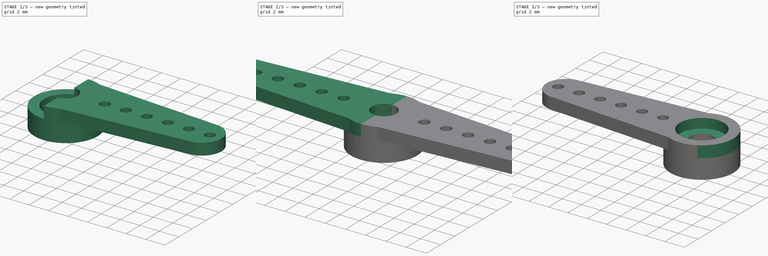
[diagram: build sequence overview — one tinted view per stage of 3, left to right]
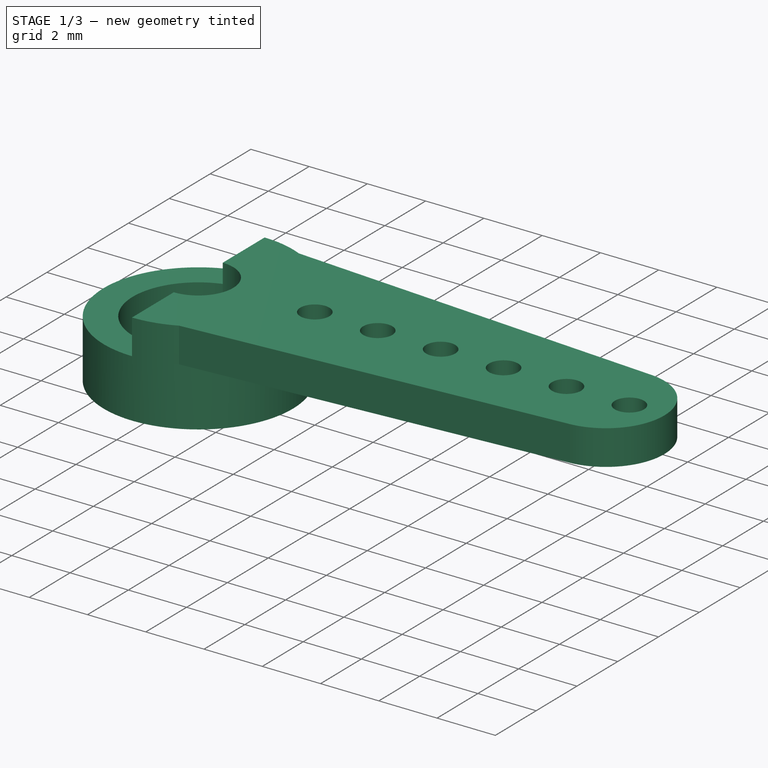
[diagram: stage 1 of 3 — iso view after this stage's code; geometry added in this stage tinted green]
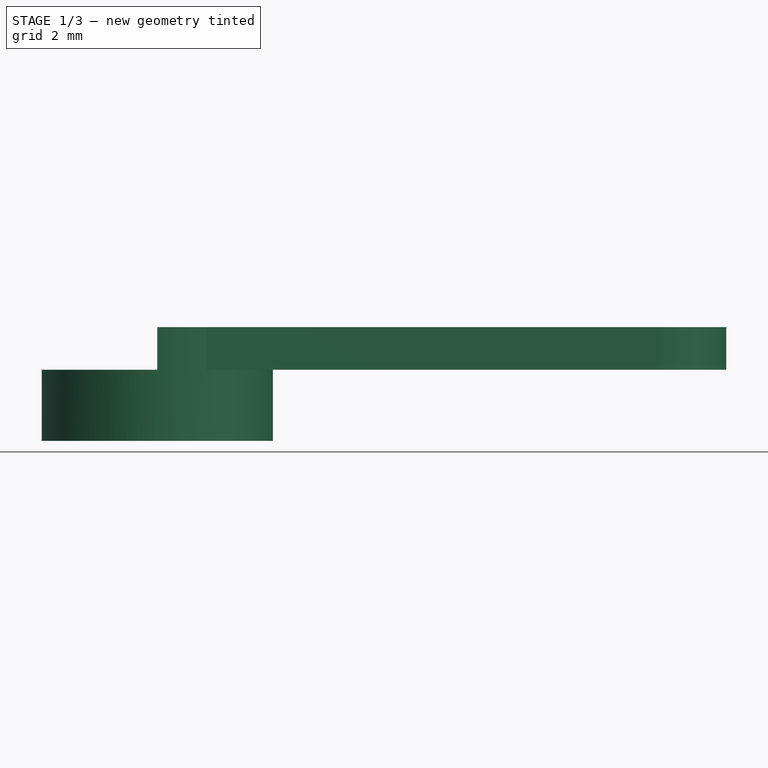
[diagram: stage 1 of 3 — front view after this stage's code; geometry added in this stage tinted green]
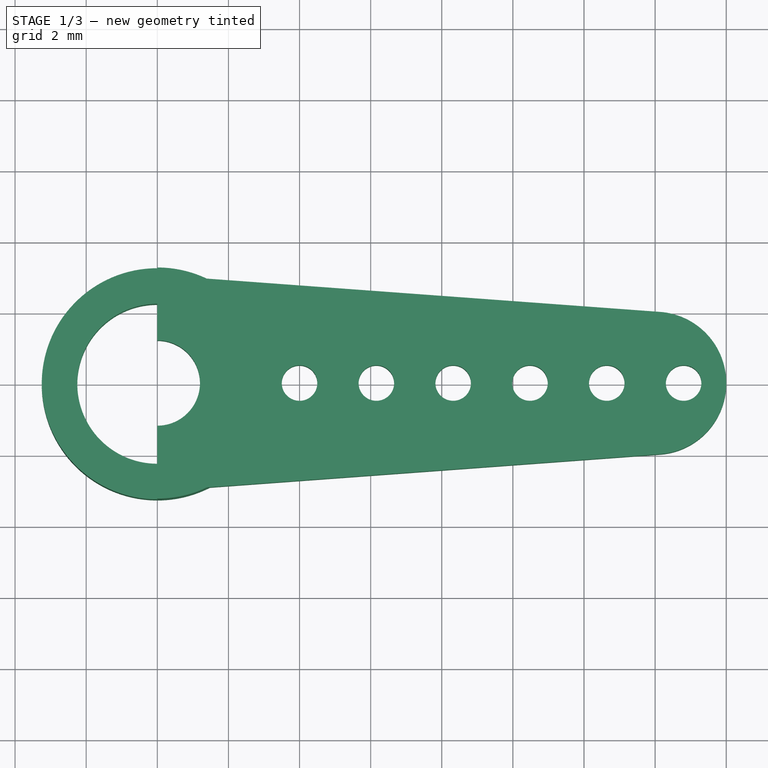
[diagram: stage 1 of 3 — top view after this stage's code; geometry added in this stage tinted green]
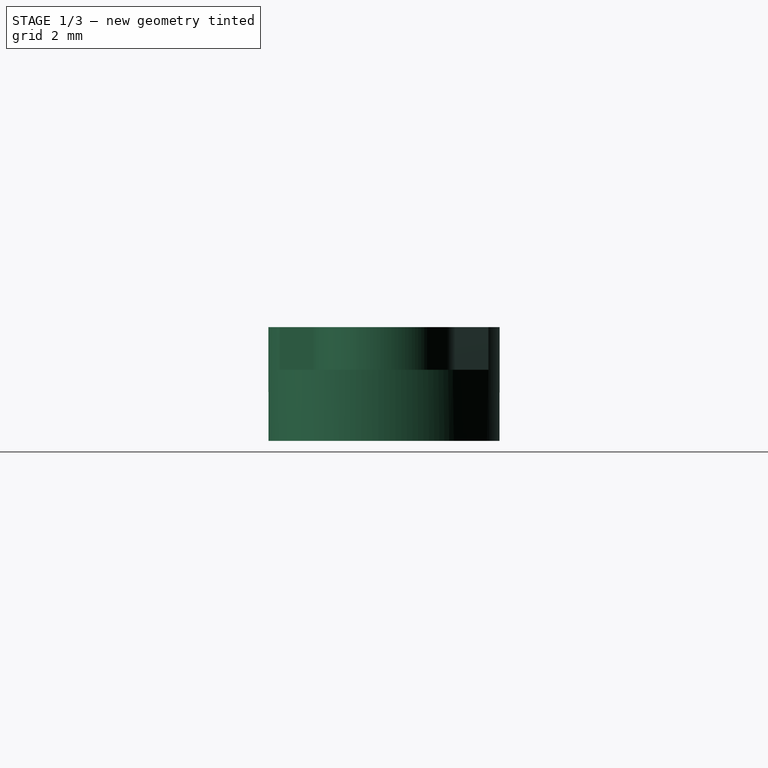
[diagram: stage 1 of 3 — right view after this stage's code; geometry added in this stage tinted green]
FCSTD DOCUMENT  (FreeCAD 0.19R24276 (Git))
Label: tapa_2_SG90
License: All rights reserved
LicenseURL: http://en.wikipedia.org/wiki/All_rights_reserved
objects: Sketcher::SketchObject×4, PartDesign::Pad×2, PartDesign::Pocket×2, PartDesign::Mirrored×1, PartDesign::Body×1
note: 14 computed .brp shape members not serialized (recipe doc carries the construction recipe); baked Part::Feature solids carry a one-line shape summary decoded from their .brp

FEATURE [Sketcher::SketchObject] Sketch
  FullyConstrained = true
  MapMode = 5
  Support = -> [XY_Plane]
  sketch-geometry (2):
    g0: Circle CenterX=0 CenterY=0 CenterZ=0 NormalX=0 NormalY=0 NormalZ=1 AngleXU=0 Radius=2.25
    g1: Circle CenterX=0 CenterY=0 CenterZ=0 NormalX=0 NormalY=0 NormalZ=1 AngleXU=0 Radius=3.25
  constraints (4):
    c: Coincident(g0,g-1)
    c: Coincident(g1,g0)
    c: Diameter(g0) = 4.5
    c: Diameter(g1) = 6.5
FEATURE [PartDesign::Pad] Pad
  Direction = (1,1,1)
  Length = 2
  Length2 = 100
  Profile = -> Sketch
  Type = 0
FEATURE [Sketcher::SketchObject] Sketch001
  ExternalGeometry = -> [Pad]
  FullyConstrained = false
  MapMode = 5
  Placement = pos=(0,0,2) rot=(0,0,1;0rad)
  Support = -> [Pad]
  sketch-geometry (22):
    g0: LineSegment StartX=1.39256 StartY=2.93654 StartZ=0 EndX=14.1415 EndY=2 EndZ=0
    g1: ArcOfCircle CenterX=13.9946 CenterY=0 CenterZ=0 NormalX=0 NormalY=0 NormalZ=1 AngleXU=0 Radius=2.00539 StartAngle=4.78572 EndAngle=7.78065
    g2: LineSegment StartX=14.1415 StartY=-2 StartZ=0 EndX=1.39256 EndY=-2.93654 EndZ=0
    g3: GeomPoint X=16 Y=0 Z=0
    g4: Circle CenterX=4 CenterY=0 CenterZ=0 NormalX=0 NormalY=0 NormalZ=1 AngleXU=0 Radius=0.5
    g5: Circle CenterX=6.16 CenterY=0 CenterZ=0 NormalX=0 NormalY=0 NormalZ=1 AngleXU=0 Radius=0.5
    g6: Circle CenterX=8.32 CenterY=0 CenterZ=0 NormalX=0 NormalY=0 NormalZ=1 AngleXU=0 Radius=0.5
    g7: Circle CenterX=10.48 CenterY=0 CenterZ=0 NormalX=0 NormalY=0 NormalZ=1 AngleXU=0 Radius=0.5
    g8: Circle CenterX=12.64 CenterY=0 CenterZ=0 NormalX=0 NormalY=0 NormalZ=1 AngleXU=0 Radius=0.5
    g9: Circle CenterX=14.8 CenterY=0 CenterZ=0 NormalX=0 NormalY=0 NormalZ=1 AngleXU=0 Radius=0.5
    g10: LineSegment StartX=4 StartY=0 StartZ=0 EndX=6.16 EndY=0 EndZ=0
    g11: LineSegment StartX=6.16 StartY=0 StartZ=0 EndX=8.32 EndY=0 EndZ=0
    g12: LineSegment StartX=8.32 StartY=0 StartZ=0 EndX=10.48 EndY=0 EndZ=0
    g13: LineSegment StartX=10.48 StartY=0 StartZ=0 EndX=12.64 EndY=0 EndZ=0
    g14: LineSegment StartX=12.64 StartY=0 StartZ=0 EndX=14.8 EndY=0 EndZ=0
    g15: GeomPoint X=0 Y=3.25 Z=0
    g16: GeomPoint X=-6e-16 Y=-3.25 Z=0
    g17: ArcOfCircle CenterX=0 CenterY=0 CenterZ=0 NormalX=0 NormalY=0 NormalZ=1 AngleXU=0 Radius=3.25 StartAngle=1.12799 EndAngle=1.5708
    g18: ArcOfCircle CenterX=0 CenterY=0 CenterZ=0 NormalX=0 NormalY=0 NormalZ=1 AngleXU=0 Radius=3.25 StartAngle=4.71239 EndAngle=5.1552
    g19: LineSegment StartX=0 StartY=3.25 StartZ=0 EndX=4e-16 EndY=1.2 EndZ=0
    g20: ArcOfCircle CenterX=0 CenterY=0 CenterZ=0 NormalX=0 NormalY=0 NormalZ=1 AngleXU=0 Radius=1.2 StartAngle=4.71239 EndAngle=7.85398
    g21: LineSegment StartX=-2e-16 StartY=-1.2 StartZ=0 EndX=-6e-16 EndY=-3.25 EndZ=0
  constraints (47):
    c: Tangent(g0,g1) = 1.5708
    c: PointOnObject(g1,g-1)
    c: Tangent(g1,g2) = 1.5708
    c: Symmetric(g0,g2,g-1)
    c: PointOnObject(g3,g1)
    c: PointOnObject(g3,g-1)
    c: DistanceX(g-1,g3) = 16
    c: DistanceY(g1,g0) = 4
    c: PointOnObject(g4,g-1)
    c: PointOnObject(g5,g-1)
    c: PointOnObject(g6,g-1)
    c: PointOnObject(g7,g-1)
    c: PointOnObject(g8,g-1)
    c: PointOnObject(g9,g-1)
    c: Diameter(g4) = 1
    c: Equal(g4, g5-g9) x5
    c: Coincident(g10,g4)
    c: Coincident(g10,g5)
    c: Coincident(g10,g11)
    c: Coincident(g11,g6)
    c: Coincident(g11,g12)
    c: Coincident(g12,g7)
    c: Coincident(g12,g13)
    c: Coincident(g13,g8)
    c: Coincident(g13,g14)
    c: Coincident(g14,g9)
    c: Equal(g14,g13)
    c: Equal(g13,g12)
    c: Equal(g12,g11)
    c: Equal(g11,g10)
    c: DistanceX(g9,g3) = 1.2
    c: PointOnObject(g16,g-2)
    c: PointOnObject(g15,g-2)
    c: PointOnObject(g0,g-3)
    c: Coincident(g17,g-1)
    c: Coincident(g17,g0)
    c: Coincident(g17,g15)
    c: Coincident(g18,g17)
    c: Coincident(g18,g16)
    c: Coincident(g18,g2)
    c: Coincident(g19,g17)
    c: Coincident(g21,g18)
    c: Coincident(g20,g17)
    c: Diameter(g20) = 2.4
    c: Coincident(g19,g20)
    c: Coincident(g21,g20)
    c: Tangent(g19,g21)
FEATURE [PartDesign::Pad] Pad001
  BaseFeature = -> Pad
  Direction = (1,1,1)
  Length = 1.2
  Length2 = 100
  Profile = -> Sketch001
  Type = 0
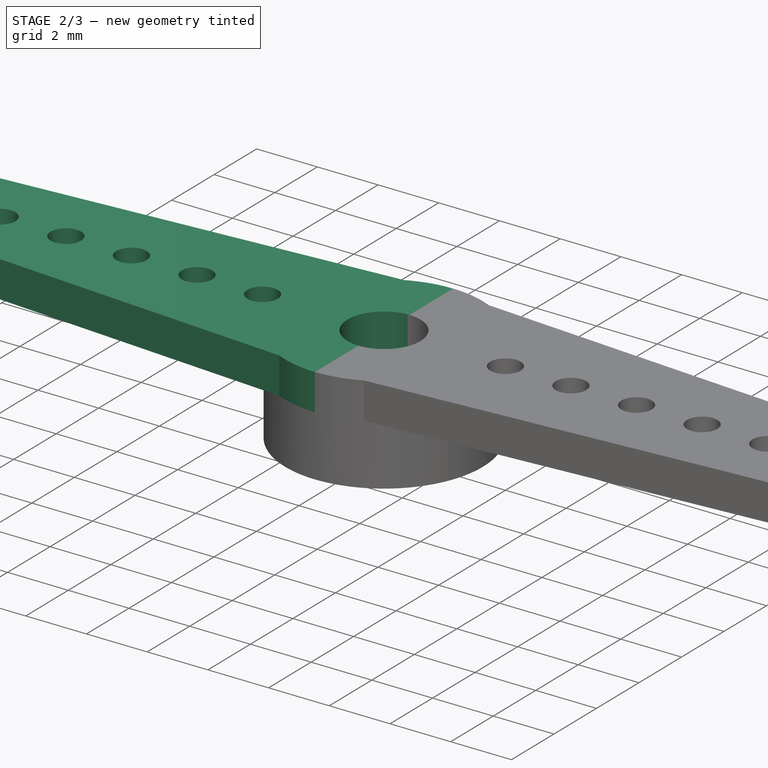
[diagram: stage 2 of 3 — iso view after this stage's code; geometry added in this stage tinted green]
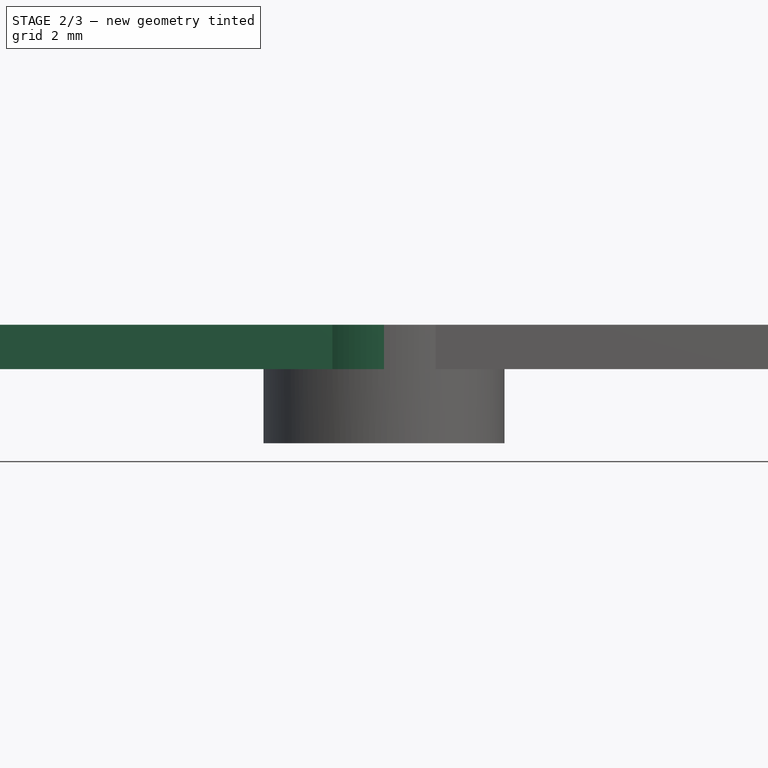
[diagram: stage 2 of 3 — front view after this stage's code; geometry added in this stage tinted green]
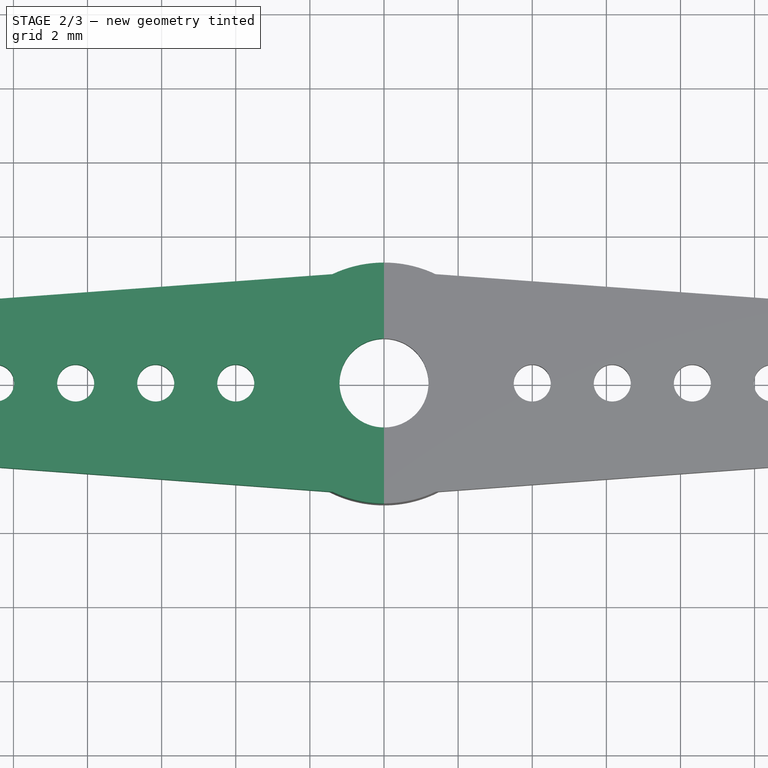
[diagram: stage 2 of 3 — top view after this stage's code; geometry added in this stage tinted green]
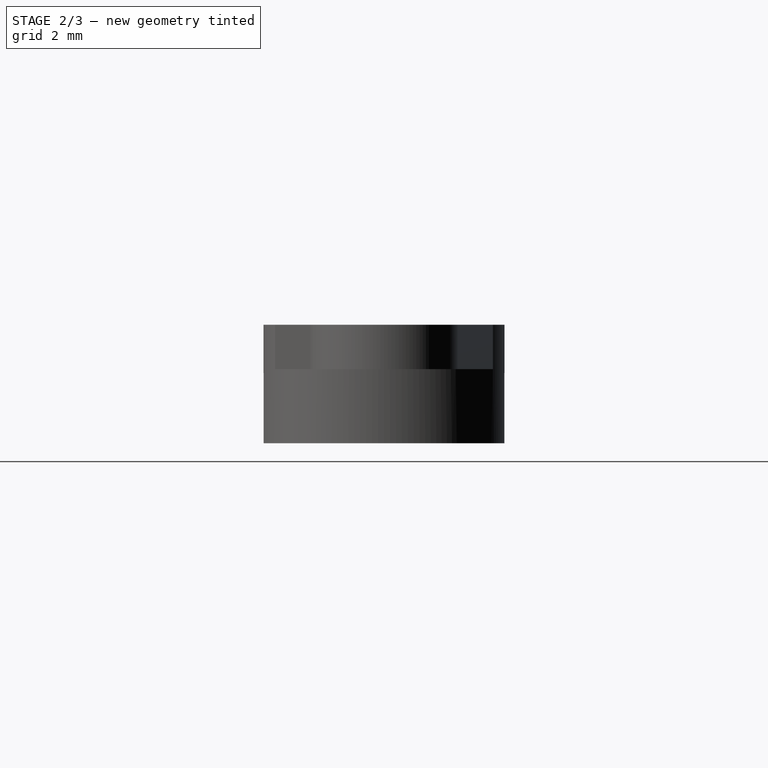
[diagram: stage 2 of 3 — right view after this stage's code; geometry added in this stage tinted green]
FEATURE [PartDesign::Mirrored] Mirrored
  BaseFeature = -> Pad001
  MirrorPlane = -> Sketch001 [V_Axis]
  Originals = -> [Pad001]
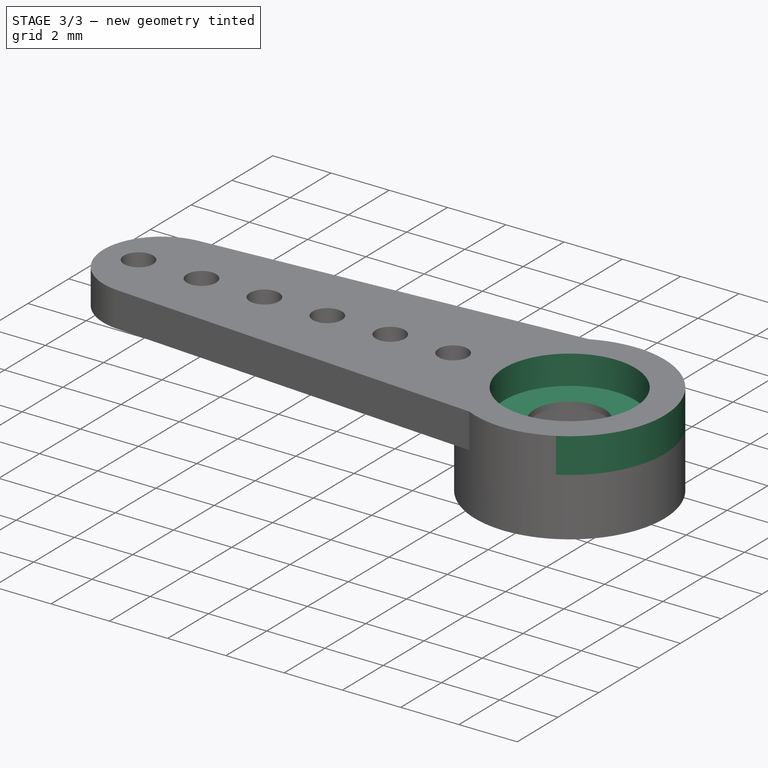
[diagram: stage 3 of 3 — iso view after this stage's code; geometry added in this stage tinted green]
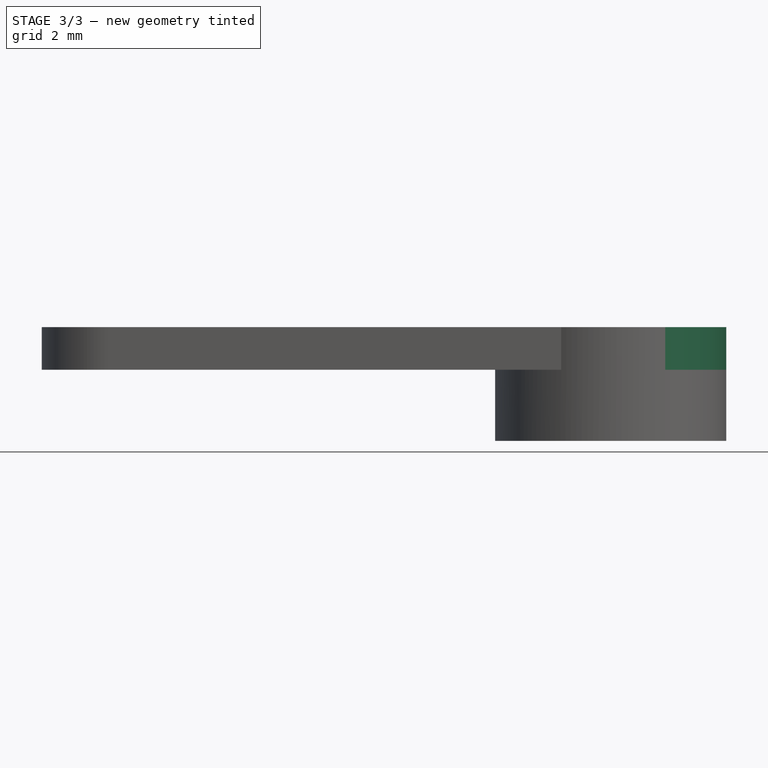
[diagram: stage 3 of 3 — front view after this stage's code; geometry added in this stage tinted green]
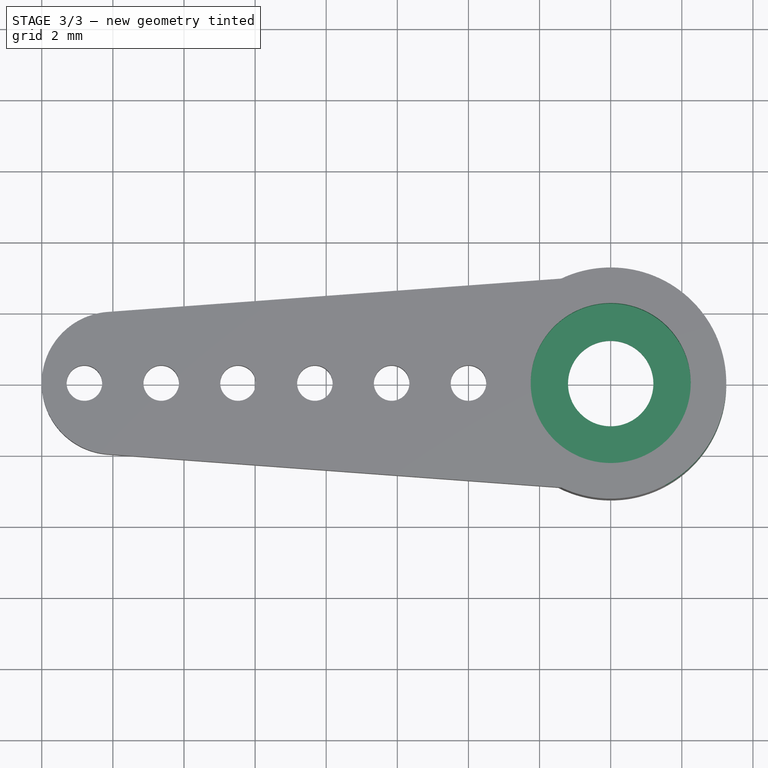
[diagram: stage 3 of 3 — top view after this stage's code; geometry added in this stage tinted green]
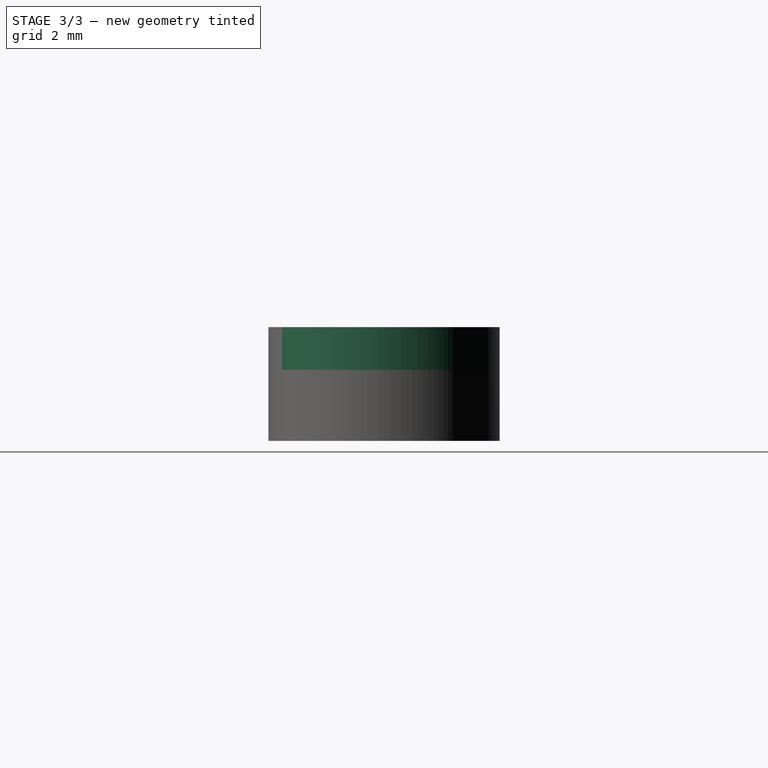
[diagram: stage 3 of 3 — right view after this stage's code; geometry added in this stage tinted green]
FEATURE [Sketcher::SketchObject] Sketch002
  FullyConstrained = true
  MapMode = 5
  Placement = pos=(0,0,3.2) rot=(0,0,1;0rad)
  Support = -> [Mirrored]
  sketch-geometry (1):
    g0: Circle CenterX=0 CenterY=0 CenterZ=0 NormalX=0 NormalY=0 NormalZ=1 AngleXU=0 Radius=2.25
  constraints (2):
    c: Coincident(g0,g-1)
    c: Diameter(g0) = 4.5
FEATURE [PartDesign::Pocket] Pocket
  BaseFeature = -> Mirrored
  Length = 1
  Length2 = 100
  Profile = -> Sketch002
  Type = 0
FEATURE [Sketcher::SketchObject] Sketch003
  ExternalGeometry = -> [Pocket]
  FullyConstrained = false
  MapMode = 5
  Placement = pos=(0,0,3.2) rot=(0,0,1;0rad)
  Support = -> [Pocket]
  sketch-geometry (4):
    g0: ArcOfCircle CenterX=0 CenterY=0 CenterZ=0 NormalX=0 NormalY=0 NormalZ=1 AngleXU=0 Radius=3.25 StartAngle=5.1552 EndAngle=7.41117
    g1: LineSegment StartX=1.39256 StartY=2.93654 StartZ=0 EndX=17.8804 EndY=5.2693 EndZ=0
    g2: LineSegment StartX=17.8804 StartY=5.2693 StartZ=0 EndX=19.1579 EndY=-4.85975 EndZ=0
    g3: LineSegment StartX=19.1579 StartY=-4.85975 StartZ=0 EndX=1.39256 EndY=-2.93654 EndZ=0
  constraints (7):
    c: Coincident(g0,g-1)
    c: Coincident(g0,g-4)
    c: Coincident(g0,g-3)
    c: Coincident(g0,g1)
    c: Coincident(g1,g2)
    c: Coincident(g2,g3)
    c: Coincident(g3,g0)
FEATURE [PartDesign::Pocket] Pocket001
  BaseFeature = -> Pocket
  Length = 5
  Length2 = 100
  Profile = -> Sketch003
  Type = 0
FEATURE [PartDesign::Body] Body
  Group = -> [Sketch,Pad,Sketch001,Pad001,Mirrored,Sketch002,Pocket,Sketch003,Pocket001]
  Origin = -> Origin
  Tip = -> Pocket001
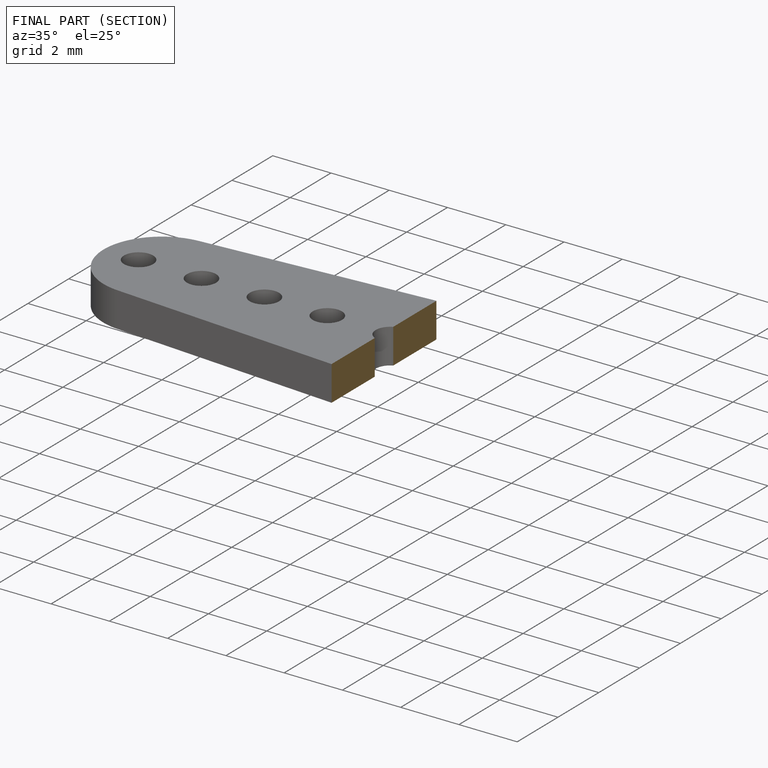
[diagram: finished part — half-section view (interior)]
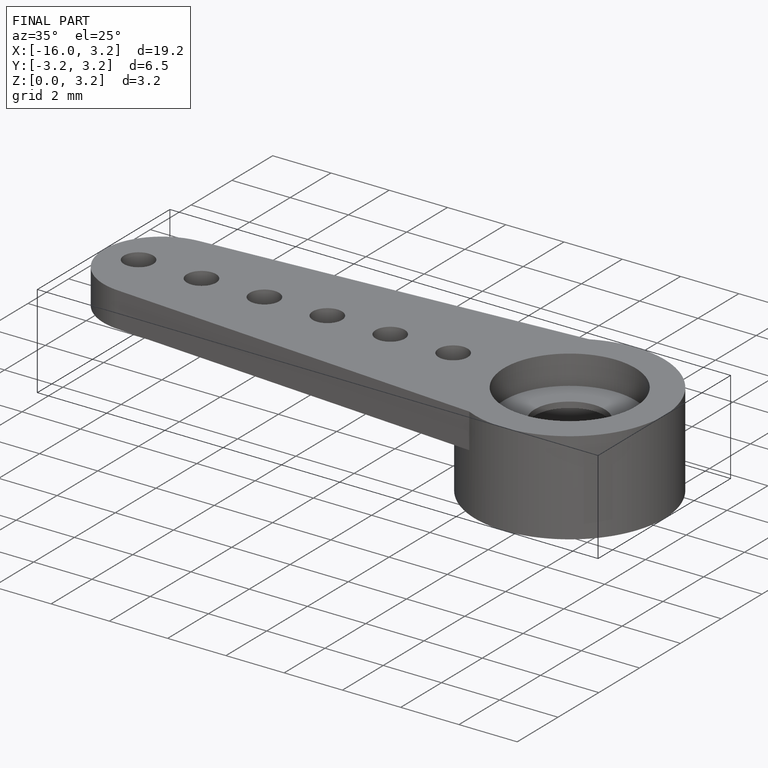
[diagram: finished part — iso view with bounding-box wireframe]
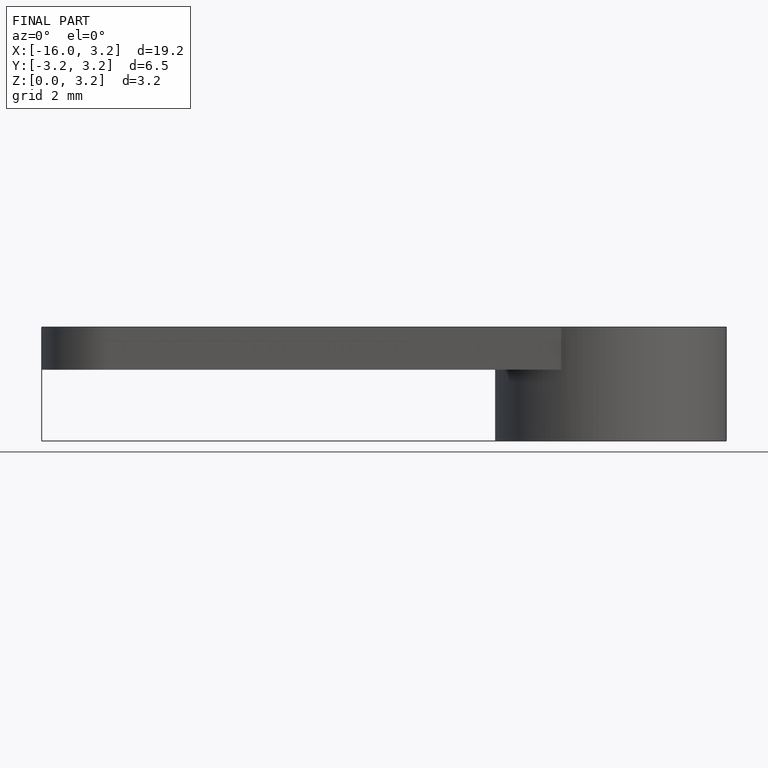
[diagram: finished part — front view with bounding-box wireframe]
